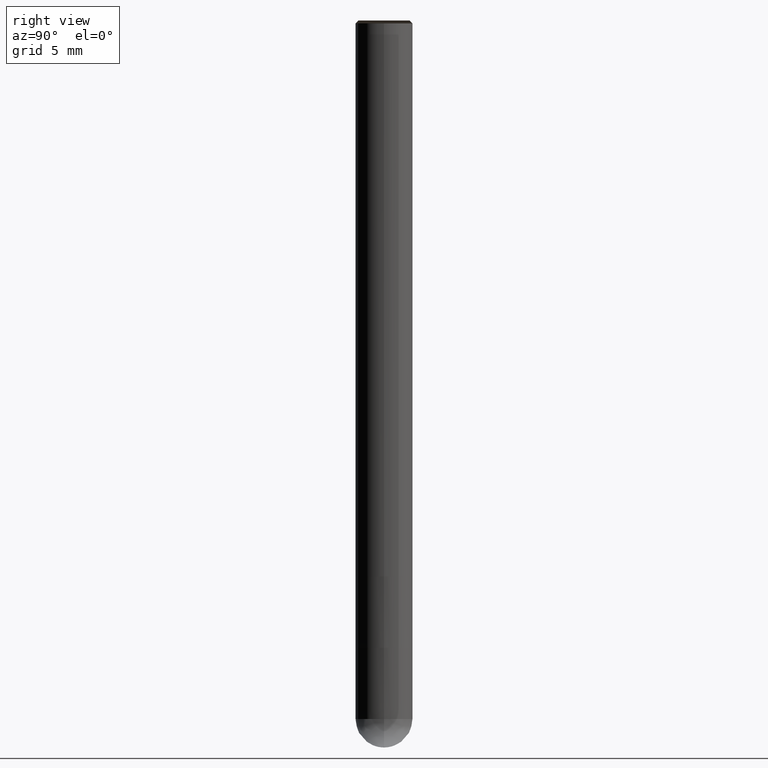
[diagram: clean part render]
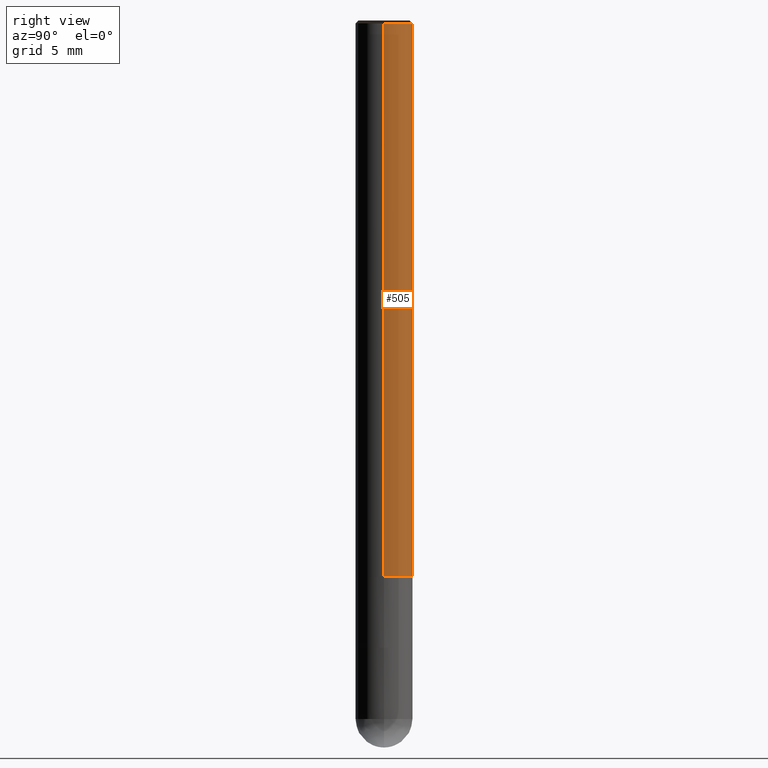
[diagram: same view with one face highlighted and labeled with its STEP entity id]
A machine part, right view. The second image highlights one B-rep face of the part: STEP entity #505.
In plain terms, the highlighted face is a freeform B-spline surface patch.
Its self-contained STEP definition (entity closure, byte-faithful):
#312=CARTESIAN_POINT('',(2.0,0.0,0.0));
#313=CARTESIAN_POINT('',(2.0,2.0,0.0));
#314=CARTESIAN_POINT('',(0.0,2.0,0.0));
#315=CARTESIAN_POINT('',(-2.0,2.0,0.0));
#316=CARTESIAN_POINT('',(-2.0,0.0,0.0));
#317=CARTESIAN_POINT('',(2.0,0.0,38.8));
#318=CARTESIAN_POINT('',(2.0,2.0,38.8));
#319=CARTESIAN_POINT('',(0.0,2.0,38.8));
#320=CARTESIAN_POINT('',(-2.0,2.0,38.8));
#321=CARTESIAN_POINT('',(-2.0,0.0,38.8));
#486=(
BOUNDED_SURFACE()
B_SPLINE_SURFACE(1,2,(
(#312,#313,#314,#315,#316),
(#317,#318,#319,#320,#321)
), .UNSPECIFIED.,.F.,.F.,.F.)
B_SPLINE_SURFACE_WITH_KNOTS((2,2),(3,2,3),(
0.0,1.0),(
0.0,0.5,1.0), .UNSPECIFIED.)
GEOMETRIC_REPRESENTATION_ITEM()
RATIONAL_B_SPLINE_SURFACE(((1.0,0.707106781187,1.0,0.707106781187,1.0),
(1.0,0.707106781187,1.0,0.707106781187,1.0)
))
REPRESENTATION_ITEM('')
SURFACE()
);
#487=(
BOUNDED_CURVE()
B_SPLINE_CURVE(2,(#316,#315,#314,#313,#312),.UNSPECIFIED.,.F.,.F.)
B_SPLINE_CURVE_WITH_KNOTS((3,2,3),
(0.0,0.5,1.0),.UNSPECIFIED.)
CURVE()
GEOMETRIC_REPRESENTATION_ITEM()
RATIONAL_B_SPLINE_CURVE((1.0,0.707106781187,1.0,0.707106781187,1.0))
REPRESENTATION_ITEM('')
);
#488=(
BOUNDED_CURVE()
B_SPLINE_CURVE(1,(#312,#317),.UNSPECIFIED.,.F.,.F.)
B_SPLINE_CURVE_WITH_KNOTS((2,2),
(0.0,1.0),.UNSPECIFIED.)
CURVE()
GEOMETRIC_REPRESENTATION_ITEM()
RATIONAL_B_SPLINE_CURVE((1.0,1.0))
REPRESENTATION_ITEM('')
);
#489=(
BOUNDED_CURVE()
B_SPLINE_CURVE(2,(#317,#318,#319,#320,#321),.UNSPECIFIED.,.F.,.F.)
B_SPLINE_CURVE_WITH_KNOTS((3,2,3),
(0.0,0.5,1.0),.UNSPECIFIED.)
CURVE()
GEOMETRIC_REPRESENTATION_ITEM()
RATIONAL_B_SPLINE_CURVE((1.0,0.707106781187,1.0,0.707106781187,1.0))
REPRESENTATION_ITEM('')
);
#490=(
BOUNDED_CURVE()
B_SPLINE_CURVE(1,(#321,#316),.UNSPECIFIED.,.F.,.F.)
B_SPLINE_CURVE_WITH_KNOTS((2,2),
(0.0,1.0),.UNSPECIFIED.)
CURVE()
GEOMETRIC_REPRESENTATION_ITEM()
RATIONAL_B_SPLINE_CURVE((1.0,1.0))
REPRESENTATION_ITEM('')
);
#491=VERTEX_POINT('',#312);
#492=VERTEX_POINT('',#316);
#493=VERTEX_POINT('',#317);
#494=VERTEX_POINT('',#321);
#495=EDGE_CURVE('',#492,#491,#487,.T.);
#496=EDGE_CURVE('',#491,#493,#488,.T.);
#497=EDGE_CURVE('',#493,#494,#489,.T.);
#498=EDGE_CURVE('',#494,#492,#490,.T.);
#499=ORIENTED_EDGE('',*,*,#495,.T.);
#500=ORIENTED_EDGE('',*,*,#496,.T.);
#501=ORIENTED_EDGE('',*,*,#497,.T.);
#502=ORIENTED_EDGE('',*,*,#498,.T.);
#503=EDGE_LOOP('',(#499,#500,#501,#502));
#504=FACE_OUTER_BOUND('',#503,.T.);
#505=ADVANCED_FACE('',(#504),#486,.T.);